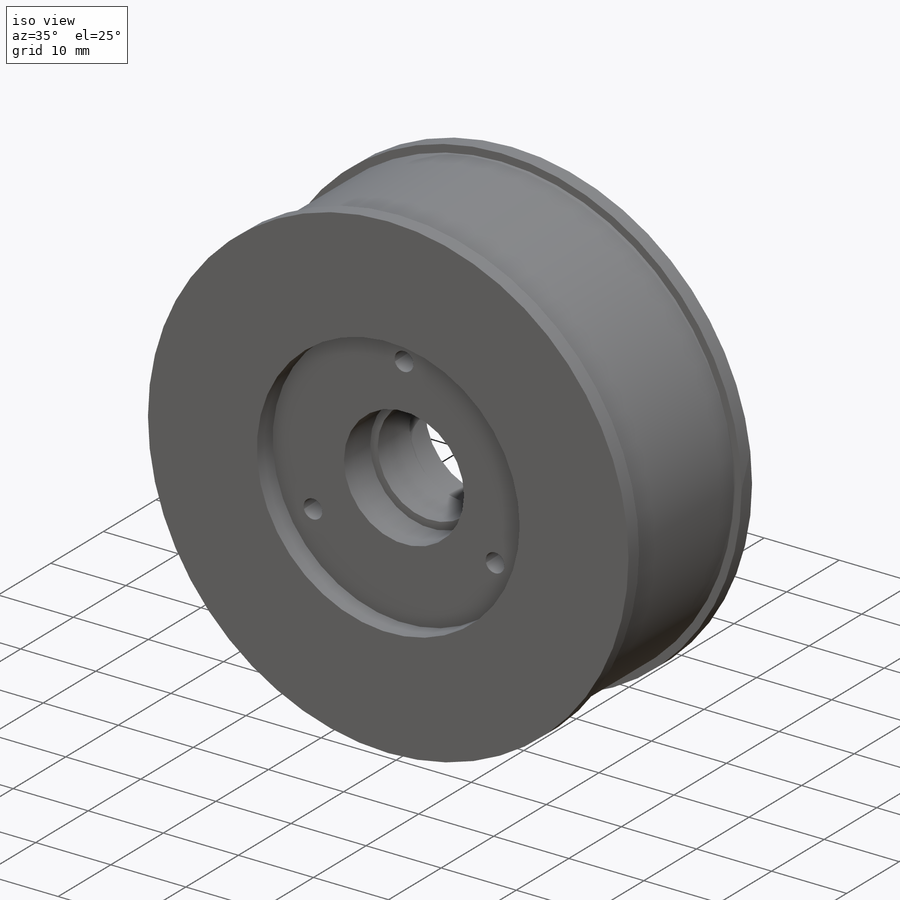
[diagram: iso view]
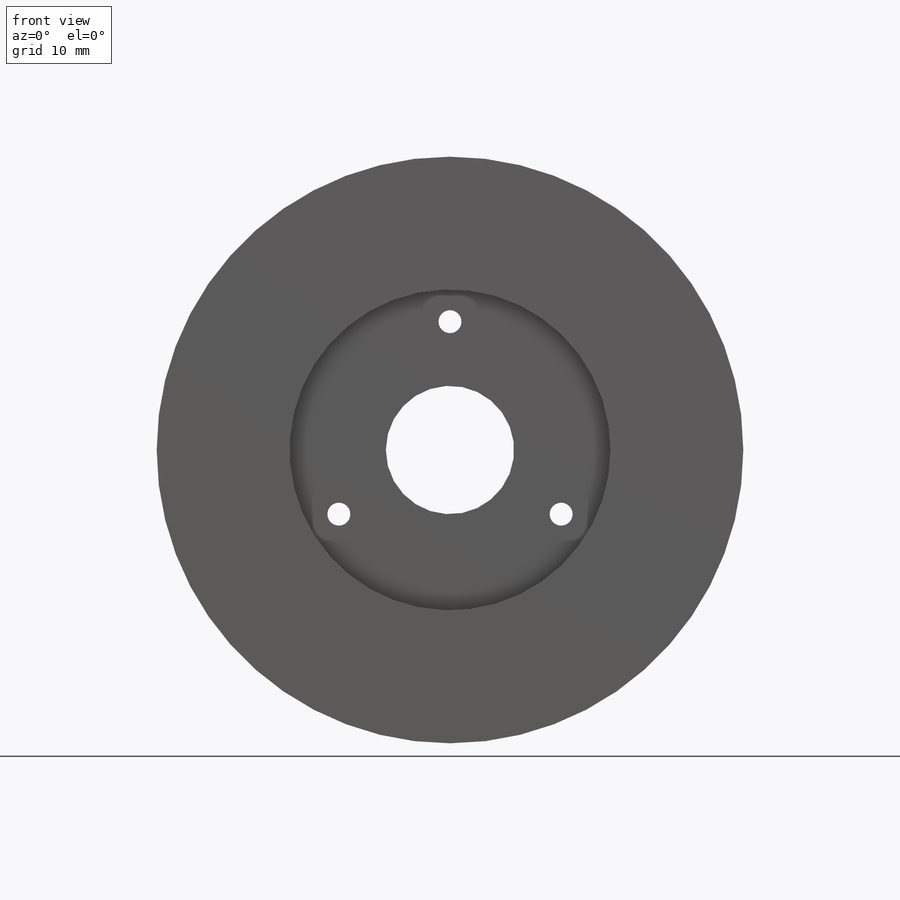
[diagram: front view]
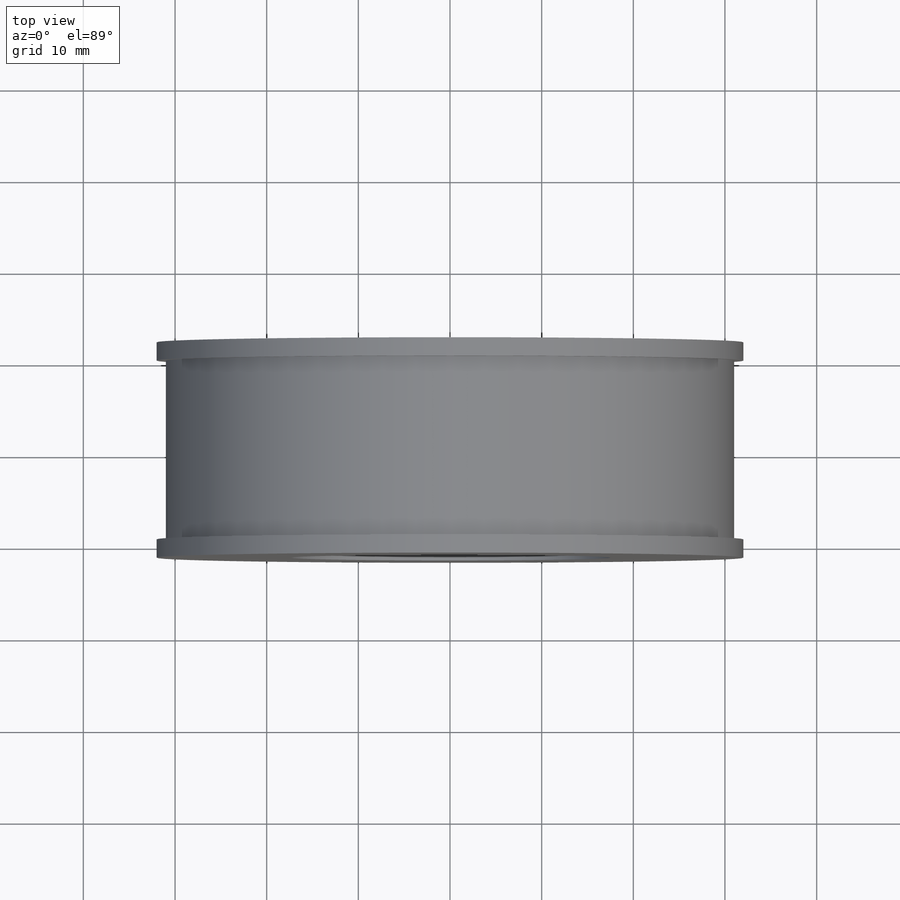
[diagram: top view]
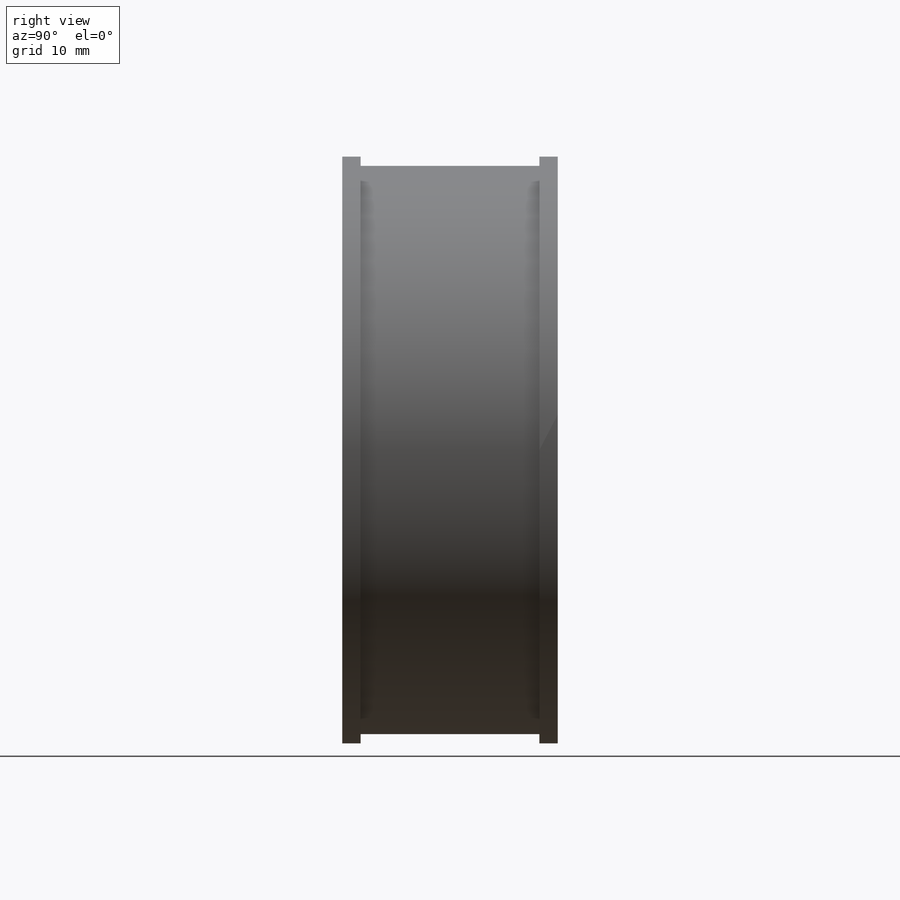
[diagram: right view]
SOLIDWORKS PART (.sldprt)
format: sldprt  version: not decoded by parser v0  size: 260,608 bytes
history: native  units: mm
features: sketch x10, cut_extrude x5, extrude x3, thread x3, material x1, hole x1 (+15 scaffold rows collapsed)
feature tree (38):
  scaffold x15  (default folders/planes/origin — collapsed)
  material  "Material <not specified>"
  sketch  "Sketch1"  dims[D1=62.0mm]
  extrude  "Extrude1"  Depth=19.5mm
  sketch  "Sketch2"  dims[D1=64.0mm]
  extrude  "Extrude2"  Depth=2mm
  sketch  "Sketch3"  dims[D1=64.0mm]
  extrude  "Extrude3"  Depth=2mm
  sketch  "Sketch4"  dims[D1=14.0mm]
  cut_extrude  "Cut-Extrude1"  [1 undecoded]
  sketch  "Sketch5"  dims[D1=16.0mm]
  cut_extrude  "Cut-Extrude2"  Depth=9.5mm
  sketch  "Sketch6"  dims[D1=36.0mm]
  cut_extrude  "Cut-Extrude3"  Depth=5mm
  hole  "M3x0.5 Tapped Hole1"  [1 undecoded]
  sketch  "3DSketch1"  dims[c1.D1=14.0mm c1.D2=14.0mm c1.D3=14.0mm c1.D4=14.0mm c2.D4=120.0deg c2.D5=14.0mm c3.D5=120.0deg]
  thread  "Hole Thread1"  Diameter=3mm  [1 undecoded]
  thread  "Hole Thread2"  Diameter=3mm  [1 undecoded]
  thread  "Hole Thread3"  Diameter=3mm  [1 undecoded]
  sketch  "Sketch7"  dims[hole-wizard template sketch: 60 standard entries collapsed; hole parameters kept: c18.Thru Tap Drill Depth=18.5mm]
  sketch  "Sketch8"  dims[D1=16.0mm]
  cut_extrude  "Cut-Extrude4"  Depth=8mm
  sketch  "Sketch9"  dims[D1=35.0mm]
  cut_extrude  "Cut-Extrude5"  Depth=3mm
decode coverage: 20 of 22 modeling features carry decoded parameters
note: ~ marks probable driven/reference dimensions
note: 5 parameter values undecoded
note: suppression state not decoded; provenance and decode notes live in map.json
